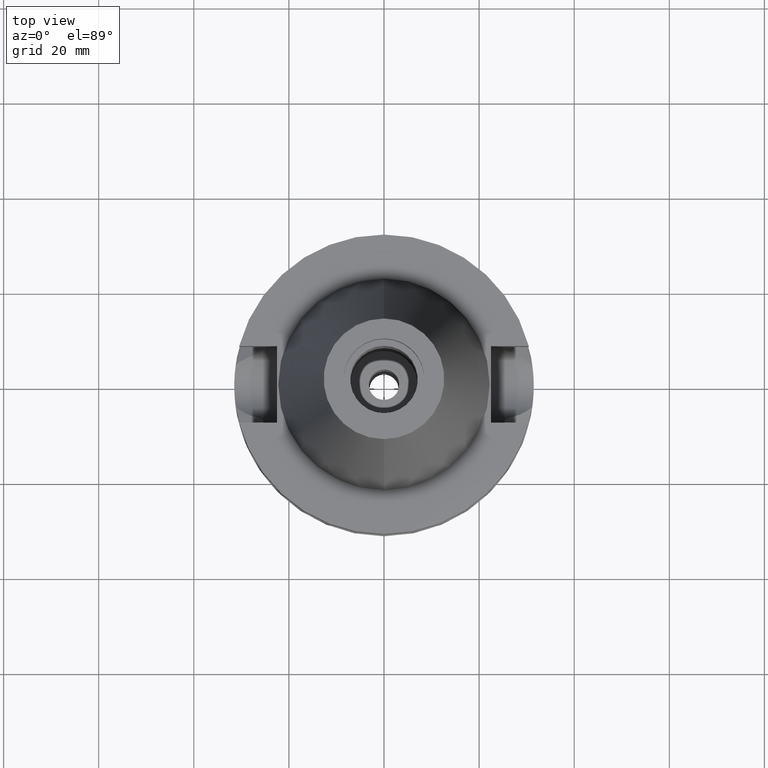
[diagram: clean part render]
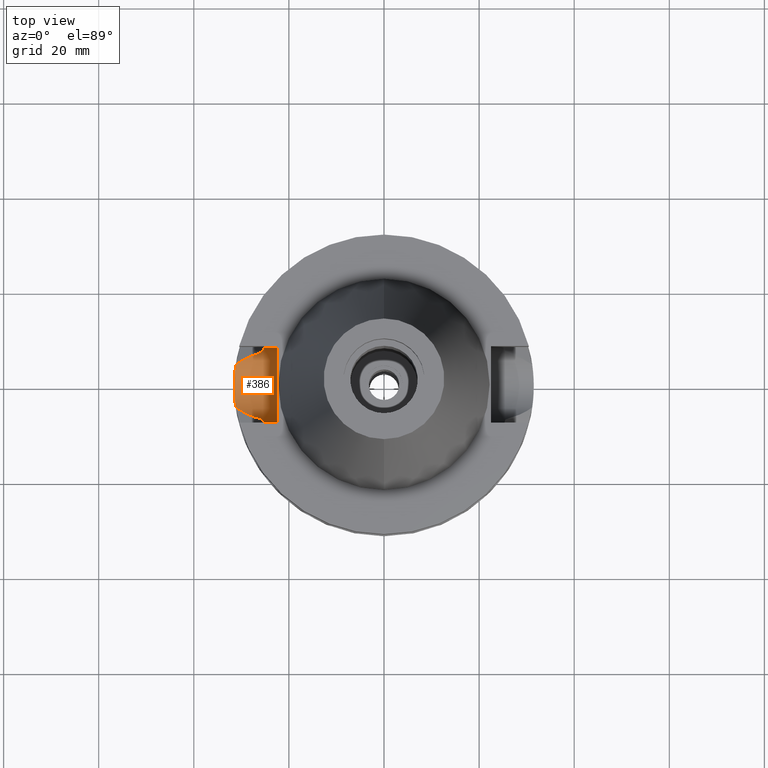
[diagram: same view with one face highlighted and labeled with its STEP entity id]
A machine part, top view. The second image highlights one B-rep face of the part: STEP entity #386.
In plain terms, the highlighted cylindrical surface (partial cylindrical patch) has radius 8.05 mm, axis along (-1, 0, 0).
Its self-contained STEP definition (entity closure, byte-faithful):
#13 = CARTESIAN_POINT ( 'NONE',  ( -27.60232427568633895, 6.420077171720422804, -19.80960365114306398 ) ) ;
#36 = EDGE_CURVE ( 'NONE', #1042, #223, #2216, .T. ) ;
#80 = CARTESIAN_POINT ( 'NONE',  ( -25.24772266958000344, -8.050000000000000711, -14.94999999999999929 ) ) ;
#164 = CARTESIAN_POINT ( 'NONE',  ( -22.50000000000000000, 1.807578675540999863E-14, -14.94999999999999929 ) ) ;
#180 = DIRECTION ( 'NONE',  ( 0.0000000000000000000, 0.0000000000000000000, -1.000000000000000000 ) ) ;
#183 = CARTESIAN_POINT ( 'NONE',  ( -28.79780624694451063, 5.905725240823472610, -20.42040484188951766 ) ) ;
#190 = CARTESIAN_POINT ( 'NONE',  ( -25.32840181445836336, -7.792653841590518660, -16.96926092298874877 ) ) ;
#191 = CARTESIAN_POINT ( 'NONE',  ( -31.17899877608999759, -4.485536235554000051, -21.63449434733000132 ) ) ;
#197 = CARTESIAN_POINT ( 'NONE',  ( -25.28048191953834234, 7.947027004681899598, -16.24409354915845327 ) ) ;
#205 = CARTESIAN_POINT ( 'NONE',  ( -31.47150441655142927, 1.550750680620841537, -22.89093377968096021 ) ) ;
#223 = VERTEX_POINT ( 'NONE', #2561 ) ;
#243 = CARTESIAN_POINT ( 'NONE',  ( -31.39031131244631467, 2.628187298586273979, -22.55983422582597697 ) ) ;
#251 = ORIENTED_EDGE ( 'NONE', *, *, #1992, .T. ) ;
#257 = VERTEX_POINT ( 'NONE', #981 ) ;
#295 = CARTESIAN_POINT ( 'NONE',  ( -22.50000000000000000, 1.807578675540999863E-14, -14.94999999999999929 ) ) ;
#312 = AXIS2_PLACEMENT_3D ( 'NONE', #164, #1072, #180 ) ;
#343 = DIRECTION ( 'NONE',  ( -1.000000000000000000, 1.616208268639000174E-14, -1.357614945656000126E-14 ) ) ;
#357 = CARTESIAN_POINT ( 'NONE',  ( -25.53175183775000079, -7.097862220092999941, -18.74774300138999905 ) ) ;
#360 = VERTEX_POINT ( 'NONE', #2456 ) ;
#372 = CARTESIAN_POINT ( 'NONE',  ( -28.82807152811258788, 5.891369284145460128, -20.43585979966691113 ) ) ;
#378 = CIRCLE ( 'NONE', #634, 8.050000000000000711 ) ;
#386 = ADVANCED_FACE ( 'NONE', ( #2237 ), #1600, .F. ) ;
#397 = CARTESIAN_POINT ( 'NONE',  ( -29.05207091244779605, -5.782947410395024690, -20.55024346590704809 ) ) ;
#458 = CARTESIAN_POINT ( 'NONE',  ( -31.40736225802095305, 2.414206324126519032, -22.62949227793356499 ) ) ;
#463 = EDGE_CURVE ( 'NONE', #2518, #1042, #2479, .T. ) ;
#472 = CARTESIAN_POINT ( 'NONE',  ( -31.49254817246030669, -0.7824343147826432476, -22.97160126998601015 ) ) ;
#599 = CARTESIAN_POINT ( 'NONE',  ( -28.91255547362739975, -5.850898878009496151, -20.47900266890157184 ) ) ;
#603 = EDGE_LOOP ( 'NONE', ( #251, #1529, #854, #1693, #2261, #1157, #1040, #2634 ) ) ;
#605 = CARTESIAN_POINT ( 'NONE',  ( -25.25396252671492547, 8.030902051885153270, -15.59367622151629718 ) ) ;
#631 = VECTOR ( 'NONE', #1840, 1000.000000000000000 ) ;
#634 = AXIS2_PLACEMENT_3D ( 'NONE', #295, #2782, #1220 ) ;
#635 = CARTESIAN_POINT ( 'NONE',  ( -30.85643442142506743, -4.730255697703237949, -21.47027878247854460 ) ) ;
#649 = CARTESIAN_POINT ( 'NONE',  ( -25.32546100062923244, -7.802196480338689177, -16.93206928540737621 ) ) ;
#650 = CARTESIAN_POINT ( 'NONE',  ( -31.42499671940191774, -2.173479871757725501, -22.70131995673170877 ) ) ;
#660 = CARTESIAN_POINT ( 'NONE',  ( -25.53175183775000079, 7.097862220092999941, -18.74774300138999905 ) ) ;
#701 = CARTESIAN_POINT ( 'NONE',  ( -31.23221634381117084, 4.115620490449415136, -21.88272112299540240 ) ) ;
#854 = ORIENTED_EDGE ( 'NONE', *, *, #2516, .T. ) ;
#857 = CARTESIAN_POINT ( 'NONE',  ( -25.31950540107353120, 7.821502334283406022, -16.85447843441894022 ) ) ;
#883 = CARTESIAN_POINT ( 'NONE',  ( -31.27838846370843839, 3.744638242326649546, -22.08718706858141800 ) ) ;
#914 = EDGE_CURVE ( 'NONE', #223, #360, #1542, .T. ) ;
#917 = CARTESIAN_POINT ( 'NONE',  ( -31.33707847181847583, 3.201445231374265621, -22.33871180483894392 ) ) ;
#935 = CARTESIAN_POINT ( 'NONE',  ( -27.86843235265973107, 6.314612098374733584, -19.94567500761142398 ) ) ;
#976 = B_SPLINE_CURVE_WITH_KNOTS ( 'NONE', 3,
 ( #2691, #635, #1546, #2012, #1310, #2465, #1054, #397, #2655, #599, #1509, #2429, #1494, #2245 ),
 .UNSPECIFIED., .F., .F.,
 ( 4, 2, 2, 1, 1, 2, 2, 4 ),
 ( 0.0000000000000000000, 0.2500000000000098255, 0.3750000000000147660, 0.4375000000000172085, 0.4687500000000182077, 0.4843750000000183742, 0.5000000000000185407, 1.000000000000000000 ),
 .UNSPECIFIED. ) ;
#981 = CARTESIAN_POINT ( 'NONE',  ( -25.53175183775000079, -7.097862220092999941, -18.74774300138999905 ) ) ;
#991 = VECTOR ( 'NONE', #343, 1000.000000000000000 ) ;
#1035 = CARTESIAN_POINT ( 'NONE',  ( -25.34383784690667696, -7.742464100974354224, -17.15621186859764791 ) ) ;
#1040 = ORIENTED_EDGE ( 'NONE', *, *, #914, .T. ) ;
#1042 = VERTEX_POINT ( 'NONE', #1197 ) ;
#1054 = CARTESIAN_POINT ( 'NONE',  ( -29.24439123996862833, -5.686920787532114829, -20.64843650322643853 ) ) ;
#1059 = CARTESIAN_POINT ( 'NONE',  ( -25.32117791941933405, 7.816083715568992396, -16.87657725263354180 ) ) ;
#1066 = LINE ( 'NONE', #1710, #991 ) ;
#1072 = DIRECTION ( 'NONE',  ( -1.000000000000000000, 0.0000000000000000000, 0.0000000000000000000 ) ) ;
#1102 = CARTESIAN_POINT ( 'NONE',  ( -31.41200430603226934, 2.353176799726551138, -22.64842219027406856 ) ) ;
#1109 = CARTESIAN_POINT ( 'NONE',  ( -29.75964107247535750, 5.446211078519224813, -20.91157894123775307 ) ) ;
#1115 = CARTESIAN_POINT ( 'NONE',  ( -31.41630068311784285, -2.294990303366004625, -22.66593676115452993 ) ) ;
#1156 = CARTESIAN_POINT ( 'NONE',  ( -31.46164955142647557, -1.563742733624323700, -22.84919402122407206 ) ) ;
#1157 = ORIENTED_EDGE ( 'NONE', *, *, #36, .T. ) ;
#1175 = CARTESIAN_POINT ( 'NONE',  ( -25.24772266958000344, 8.050000000000000711, -14.94999999999999929 ) ) ;
#1197 = CARTESIAN_POINT ( 'NONE',  ( -25.53175183775000079, 7.097862220092999941, -18.74774300138999905 ) ) ;
#1201 = EDGE_CURVE ( 'NONE', #2352, #2400, #1066, .T. ) ;
#1220 = DIRECTION ( 'NONE',  ( 0.0000000000000000000, 0.0000000000000000000, -1.000000000000000000 ) ) ;
#1263 = CARTESIAN_POINT ( 'NONE',  ( -25.37568864340162733, -7.637841086874976426, -17.49779646604959638 ) ) ;
#1306 = CARTESIAN_POINT ( 'NONE',  ( -25.43785506100059379, 7.435618734365219140, -18.11648669958635693 ) ) ;
#1310 = CARTESIAN_POINT ( 'NONE',  ( -29.71925692480703063, -5.434491807131913710, -20.89078427497891965 ) ) ;
#1319 = CARTESIAN_POINT ( 'NONE',  ( -31.17899877608999759, 4.485536235554000051, -21.63449434733000132 ) ) ;
#1347 = CARTESIAN_POINT ( 'NONE',  ( -31.50023391467117406, 0.7573065430307195367, -23.00092412718313639 ) ) ;
#1444 = CARTESIAN_POINT ( 'NONE',  ( -28.64977513074910931, 5.975068427900345647, -20.34481403313024117 ) ) ;
#1494 = CARTESIAN_POINT ( 'NONE',  ( -26.81492848341001078, -6.745138948328959216, -19.40697170219203116 ) ) ;
#1509 = CARTESIAN_POINT ( 'NONE',  ( -28.88538013535162108, -5.863983878449307241, -20.46512547387206027 ) ) ;
#1529 = ORIENTED_EDGE ( 'NONE', *, *, #1201, .F. ) ;
#1542 = B_SPLINE_CURVE_WITH_KNOTS ( 'NONE', 3,
 ( #2315, #701, #883, #917, #1810, #1578, #243, #2528, #458, #2056, #1102, #205, #1347, #2541, #472, #2956, #1156, #1799, #2260, #650, #1562, #1115, #2483, #2758, #2043, #2970, #191 ),
 .UNSPECIFIED., .F., .F.,
 ( 4, 2, 2, 1, 1, 2, 2, 2, 2, 2, 1, 1, 1, 2, 2, 4 ),
 ( 0.0000000000000000000, 0.1250000000000000555, 0.1875000000000001388, 0.2187500000000002776, 0.2343750000000006106, 0.2421875000000008327, 0.2500000000000010547, 0.5000000000000027756, 0.6250000000000036637, 0.6875000000000039968, 0.7187500000000041078, 0.7343750000000041078, 0.7421875000000041078, 0.7460937500000038858, 0.7500000000000036637, 1.000000000000000000 ),
 .UNSPECIFIED. ) ;
#1546 = CARTESIAN_POINT ( 'NONE',  ( -30.50158731768903309, -4.970376236052102215, -21.28964294928251988 ) ) ;
#1551 = CARTESIAN_POINT ( 'NONE',  ( -25.31648297027380679, 7.831286608423163820, -16.81383661545202557 ) ) ;
#1561 = CARTESIAN_POINT ( 'NONE',  ( -25.32415077929965719, -7.806445795312396463, -16.91528421260447601 ) ) ;
#1562 = CARTESIAN_POINT ( 'NONE',  ( -31.41895388234278030, -2.258557297380209494, -22.67674196859061198 ) ) ;
#1578 = CARTESIAN_POINT ( 'NONE',  ( -31.37894136408627688, 2.758863631979097342, -22.51306821925583534 ) ) ;
#1589 = CARTESIAN_POINT ( 'NONE',  ( -30.53387369509042060, 4.974972407156907472, -21.30606506478152440 ) ) ;
#1600 = CYLINDRICAL_SURFACE ( 'NONE', #312, 8.050000000000000711 ) ;
#1656 = VERTEX_POINT ( 'NONE', #2601 ) ;
#1663 = CARTESIAN_POINT ( 'NONE',  ( -28.43846411873414226, 6.071503305332541345, -20.23690760890340101 ) ) ;
#1693 = ORIENTED_EDGE ( 'NONE', *, *, #2062, .F. ) ;
#1710 = CARTESIAN_POINT ( 'NONE',  ( -22.50000000000000000, -8.050000000000000711, -14.94999999999999929 ) ) ;
#1756 = CARTESIAN_POINT ( 'NONE',  ( -25.48480250143031967, -7.266743887089764264, -18.43210847756382620 ) ) ;
#1764 = CARTESIAN_POINT ( 'NONE',  ( -25.29452159809190093, 7.902075829211898217, -16.48836005901232937 ) ) ;
#1785 = CARTESIAN_POINT ( 'NONE',  ( -25.27268209811968092, 7.971799596722143555, -16.08124396174321902 ) ) ;
#1790 = CARTESIAN_POINT ( 'NONE',  ( -28.73879888194575472, 5.933493804398390026, -20.39027306552103980 ) ) ;
#1798 = CARTESIAN_POINT ( 'NONE',  ( -25.44389776528783997, -7.408340107185043877, -18.11686868422951591 ) ) ;
#1799 = CARTESIAN_POINT ( 'NONE',  ( -31.44532781230131846, -1.856703196129199984, -22.78359225527852772 ) ) ;
#1810 = CARTESIAN_POINT ( 'NONE',  ( -31.35488044589916612, 3.022543741487820679, -22.41338040345595672 ) ) ;
#1840 = DIRECTION ( 'NONE',  ( 1.000000000000000000, 1.551559937893000172E-14, -3.878899844733000253E-14 ) ) ;
#1941 = EDGE_CURVE ( 'NONE', #360, #257, #976, .T. ) ;
#1956 = B_SPLINE_CURVE_WITH_KNOTS ( 'NONE', 3,
 ( #357, #1756, #1798, #2669, #1263, #2881, #1035, #2709, #190, #649, #1561, #2482, #1964, #1980 ),
 .UNSPECIFIED., .F., .F.,
 ( 4, 2, 2, 1, 1, 2, 2, 4 ),
 ( 0.0000000000000000000, 0.2499999999999841238, 0.3749999999999763522, 0.4374999999999725775, 0.4687499999999721889, 0.4843749999999718558, 0.4999999999999715783, 1.000000000000000000 ),
 .UNSPECIFIED. ) ;
#1964 = CARTESIAN_POINT ( 'NONE',  ( -25.24772266957999989, -8.049999999999979394, -15.58990582805522784 ) ) ;
#1980 = CARTESIAN_POINT ( 'NONE',  ( -25.24772266958000344, -8.050000000000000711, -14.94999999999999929 ) ) ;
#1992 = EDGE_CURVE ( 'NONE', #257, #2400, #1956, .T. ) ;
#2012 = CARTESIAN_POINT ( 'NONE',  ( -29.92089253847835906, -5.319809133838957926, -20.99362754830227473 ) ) ;
#2019 = CARTESIAN_POINT ( 'NONE',  ( -25.31202244740001461, 7.845715351188225384, -16.75285925644253382 ) ) ;
#2042 = LINE ( 'NONE', #2298, #631 ) ;
#2043 = CARTESIAN_POINT ( 'NONE',  ( -31.36267722272299707, -3.014176567347544022, -22.44730567393706977 ) ) ;
#2056 = CARTESIAN_POINT ( 'NONE',  ( -31.41060181519640793, 2.371771208738237657, -22.64270402106400226 ) ) ;
#2062 = EDGE_CURVE ( 'NONE', #2518, #1656, #2042, .T. ) ;
#2078 = CARTESIAN_POINT ( 'NONE',  ( -26.77118700806264329, 6.727826167159457249, -19.38411876393479361 ) ) ;
#2216 = B_SPLINE_CURVE_WITH_KNOTS ( 'NONE', 3,
 ( #660, #2525, #2078, #13, #935, #2371, #1663, #1444, #1790, #183, #372, #1109, #1589, #1319 ),
 .UNSPECIFIED., .F., .F.,
 ( 4, 2, 2, 1, 1, 2, 2, 4 ),
 ( 0.0000000000000000000, 0.2499999999999842348, 0.3749999999999754641, 0.4374999999999719669, 0.4687499999999705791, 0.4843749999999709122, 0.4999999999999712452, 1.000000000000000000 ),
 .UNSPECIFIED. ) ;
#2237 = FACE_OUTER_BOUND ( 'NONE', #603, .T. ) ;
#2245 = CARTESIAN_POINT ( 'NONE',  ( -25.53175183775000079, -7.097862220092999941, -18.74774300138999905 ) ) ;
#2260 = CARTESIAN_POINT ( 'NONE',  ( -31.43649054899055173, -2.003082981846758592, -22.74794518897635598 ) ) ;
#2261 = ORIENTED_EDGE ( 'NONE', *, *, #463, .T. ) ;
#2298 = CARTESIAN_POINT ( 'NONE',  ( -25.24772266958000344, 8.050000000000000711, -14.94999999999999929 ) ) ;
#2315 = CARTESIAN_POINT ( 'NONE',  ( -31.17899877608999759, 4.485536235554000051, -21.63449434733000132 ) ) ;
#2352 = VERTEX_POINT ( 'NONE', #2631 ) ;
#2371 = CARTESIAN_POINT ( 'NONE',  ( -28.25118794976796366, 6.153093694959250293, -20.14125097300316369 ) ) ;
#2400 = VERTEX_POINT ( 'NONE', #80 ) ;
#2429 = CARTESIAN_POINT ( 'NONE',  ( -27.92308442390909917, -6.323820716137150910, -19.97371305695792287 ) ) ;
#2438 = CARTESIAN_POINT ( 'NONE',  ( -25.24772266958000344, 8.050000000000000711, -14.94999999999999929 ) ) ;
#2455 = CARTESIAN_POINT ( 'NONE',  ( -25.30212642397509626, 7.877652634765773598, -16.61049091562633961 ) ) ;
#2456 = CARTESIAN_POINT ( 'NONE',  ( -31.17899877608999759, -4.485536235554000051, -21.63449434733000132 ) ) ;
#2465 = CARTESIAN_POINT ( 'NONE',  ( -29.40469747339838236, -5.603311965284438756, -20.73026165243453889 ) ) ;
#2479 = B_SPLINE_CURVE_WITH_KNOTS ( 'NONE', 3,
 ( #2438, #2661, #605, #1785, #197, #1764, #2455, #2019, #1551, #857, #1059, #2937, #1306, #2713 ),
 .UNSPECIFIED., .F., .F.,
 ( 4, 2, 2, 1, 1, 2, 2, 4 ),
 ( 0.0000000000000000000, 0.2500000000000162648, 0.3750000000000237033, 0.4375000000000274225, 0.4687500000000292544, 0.4843750000000290878, 0.5000000000000288658, 1.000000000000000000 ),
 .UNSPECIFIED. ) ;
#2482 = CARTESIAN_POINT ( 'NONE',  ( -25.27267878703948156, -7.973310748594792940, -16.24511349491563195 ) ) ;
#2483 = CARTESIAN_POINT ( 'NONE',  ( -31.41451779209810624, -2.319272271055971668, -22.65867282529168492 ) ) ;
#2516 = EDGE_CURVE ( 'NONE', #2352, #1656, #378, .T. ) ;
#2518 = VERTEX_POINT ( 'NONE', #1175 ) ;
#2525 = CARTESIAN_POINT ( 'NONE',  ( -26.17334478070872805, 6.921499314211119191, -19.07735972537886937 ) ) ;
#2528 = CARTESIAN_POINT ( 'NONE',  ( -31.40242035841610146, 2.478036592962058915, -22.60933024857053297 ) ) ;
#2541 = CARTESIAN_POINT ( 'NONE',  ( -31.49988075799868525, -0.3932938145163267785, -22.99952906081513859 ) ) ;
#2561 = CARTESIAN_POINT ( 'NONE',  ( -31.17899877608999759, 4.485536235554000051, -21.63449434733000132 ) ) ;
#2601 = CARTESIAN_POINT ( 'NONE',  ( -22.50000000000000000, 8.050000000000000711, -14.94999999999999929 ) ) ;
#2631 = CARTESIAN_POINT ( 'NONE',  ( -22.50000000000000000, -8.050000000000000711, -14.94999999999999929 ) ) ;
#2634 = ORIENTED_EDGE ( 'NONE', *, *, #1941, .T. ) ;
#2655 = CARTESIAN_POINT ( 'NONE',  ( -28.96851297454183438, -5.823764131166081270, -20.50757676851673850 ) ) ;
#2661 = CARTESIAN_POINT ( 'NONE',  ( -25.24772266958000699, 8.050000000000018474, -15.26995863568740397 ) ) ;
#2669 = CARTESIAN_POINT ( 'NONE',  ( -25.39160756133994923, -7.584934398586919535, -17.65162641215484385 ) ) ;
#2691 = CARTESIAN_POINT ( 'NONE',  ( -31.17899877608999759, -4.485536235554000051, -21.63449434733000132 ) ) ;
#2709 = CARTESIAN_POINT ( 'NONE',  ( -25.33288387036036582, -7.778102131033523214, -17.02514599129639095 ) ) ;
#2713 = CARTESIAN_POINT ( 'NONE',  ( -25.53175183775000079, 7.097862220092999941, -18.74774300138999905 ) ) ;
#2758 = CARTESIAN_POINT ( 'NONE',  ( -31.41354641493283850, -2.332384000897447240, -22.65471317283551045 ) ) ;
#2782 = DIRECTION ( 'NONE',  ( 1.000000000000000000, 0.0000000000000000000, 0.0000000000000000000 ) ) ;
#2881 = CARTESIAN_POINT ( 'NONE',  ( -25.35407699156058570, -7.708962562372580152, -17.26964265289514344 ) ) ;
#2937 = CARTESIAN_POINT ( 'NONE',  ( -25.36813810015027926, 7.663837995223238941, -17.48799049447513454 ) ) ;
#2956 = CARTESIAN_POINT ( 'NONE',  ( -31.47072699418135855, -1.368170334978244584, -22.88533600626861642 ) ) ;
#2970 = CARTESIAN_POINT ( 'NONE',  ( -31.28475554409439852, -3.750420082841689595, -22.12778373752476924 ) ) ;